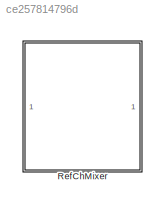
MODEL slx_ce257814796d
KIND library
CONFIG AbsTol = auto
CONFIG EnableMultiTasking = off
CONFIG FixedStep = auto
CONFIG MaxStep = auto
CONFIG MinStep = auto
CONFIG RelTol = 1e-3
CONFIG SampleTimeConstraint = Unconstrained
CONFIG SolverName = VariableStepAuto
CONFIG StartTime = 0.0
CONFIG StopTime = 10.0
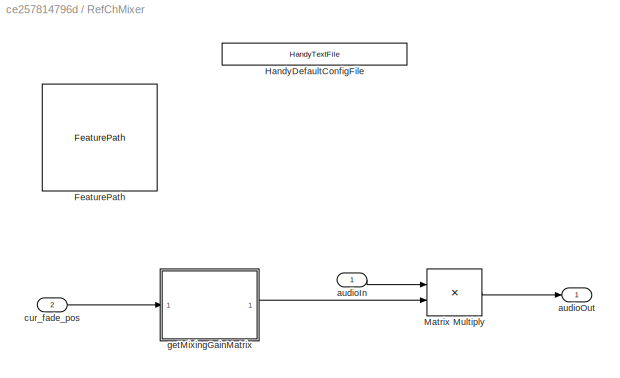
BLOCK [SubSystem] RefChMixer
BLOCK [Reference] RefChMixer/FeaturePath  REF=FeaturePath/FeaturePath
  SourceBlock = FeaturePath/FeaturePath
  SourceProductName = Bose Talaria
  SourceType = Talaria Feature Path
BLOCK [Reference] RefChMixer/HandyDefaultConfigFile  REF=HandyTextFile/HandyTextFile
  SourceBlock = HandyTextFile/HandyTextFile
  SourceProductName = Bose Talaria
  SourceType = Talaria Handy Text File
BLOCK [Product] RefChMixer/Matrix Multiply
  Multiplication = Matrix(*)
BLOCK [Inport] RefChMixer/audioIn
BLOCK [Outport] RefChMixer/audioOut
BLOCK [Inport] RefChMixer/cur_fade_pos
  Port = 2
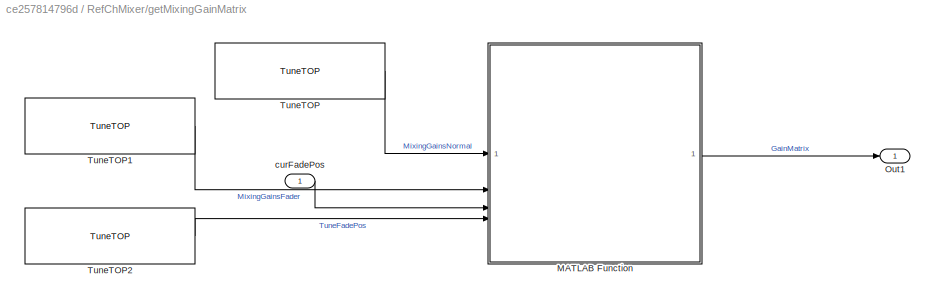
BLOCK [SubSystem] RefChMixer/getMixingGainMatrix
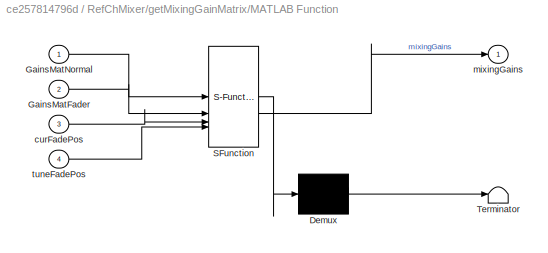
BLOCK [SubSystem] RefChMixer/getMixingGainMatrix/MATLAB Function
  ErrorFcn = Stateflow.Translate.translate
  PermitHierarchicalResolution = ExplicitOnly
  SFBlockType = MATLAB Function
  TreatAsAtomicUnit = on
BLOCK [Demux] RefChMixer/getMixingGainMatrix/MATLAB Function/ Demux 
  Outputs = 1
BLOCK [S-Function] RefChMixer/getMixingGainMatrix/MATLAB Function/ SFunction 
  EnableBusSupport = off
  FunctionName = sf_sfun
  Parameters = includeFade
  PortCounts = [4 2]
  SFcnIsStateOwnerBlock = off
  SFunctionDeploymentMode = off
  Tag = Stateflow S-Function 2
BLOCK [Terminator] RefChMixer/getMixingGainMatrix/MATLAB Function/ Terminator 
BLOCK [Inport] RefChMixer/getMixingGainMatrix/MATLAB Function/GainsMatFader
  Port = 2
BLOCK [Inport] RefChMixer/getMixingGainMatrix/MATLAB Function/GainsMatNormal
BLOCK [Inport] RefChMixer/getMixingGainMatrix/MATLAB Function/curFadePos
  Port = 3
BLOCK [Outport] RefChMixer/getMixingGainMatrix/MATLAB Function/mixingGains
BLOCK [Inport] RefChMixer/getMixingGainMatrix/MATLAB Function/tuneFadePos
  Port = 4
BLOCK [Outport] RefChMixer/getMixingGainMatrix/Out1
BLOCK [Reference] RefChMixer/getMixingGainMatrix/TuneTOP  REF=TuneVar/TuneTOP
  SourceBlock = TuneVar/TuneTOP
  SourceProductName = Bose Talaria
  SourceType = Talaria Trivial Tune TOP
BLOCK [Reference] RefChMixer/getMixingGainMatrix/TuneTOP1  REF=TuneVar/TuneTOP
  SourceBlock = TuneVar/TuneTOP
  SourceProductName = Bose Talaria
  SourceType = Talaria Trivial Tune TOP
BLOCK [Reference] RefChMixer/getMixingGainMatrix/TuneTOP2  REF=TuneVar/TuneTOP
  SourceBlock = TuneVar/TuneTOP
  SourceProductName = Bose Talaria
  SourceType = Talaria Trivial Tune TOP
BLOCK [Inport] RefChMixer/getMixingGainMatrix/curFadePos
CHART RefChMixer/getMixingGainMatrix/MATLAB Function states=1 transitions=1
  STATE_LABEL 'eML_blk_kernel()'
  STATE_LABEL "SCRIPT:\nfunction mixingGains  = fcn(GainsMatNormal,GainsMatFader, curFadePos, includeFade, tuneFadePos)\n%#codegen\n% Check if includeFade is enabled\nif(includeFade)\n  % If enables assign the value to mixingGains based on the tuneFadePos\n  if(curFadePos <= tuneFadePos)         \n      mixingGains = GainsMatNormal';       \n  else\n      mixingGains = GainsMatFader';\n  end  \nelse\n  mixingGains = GainsMa...<+13ch>"
CHART  states=0 transitions=0
